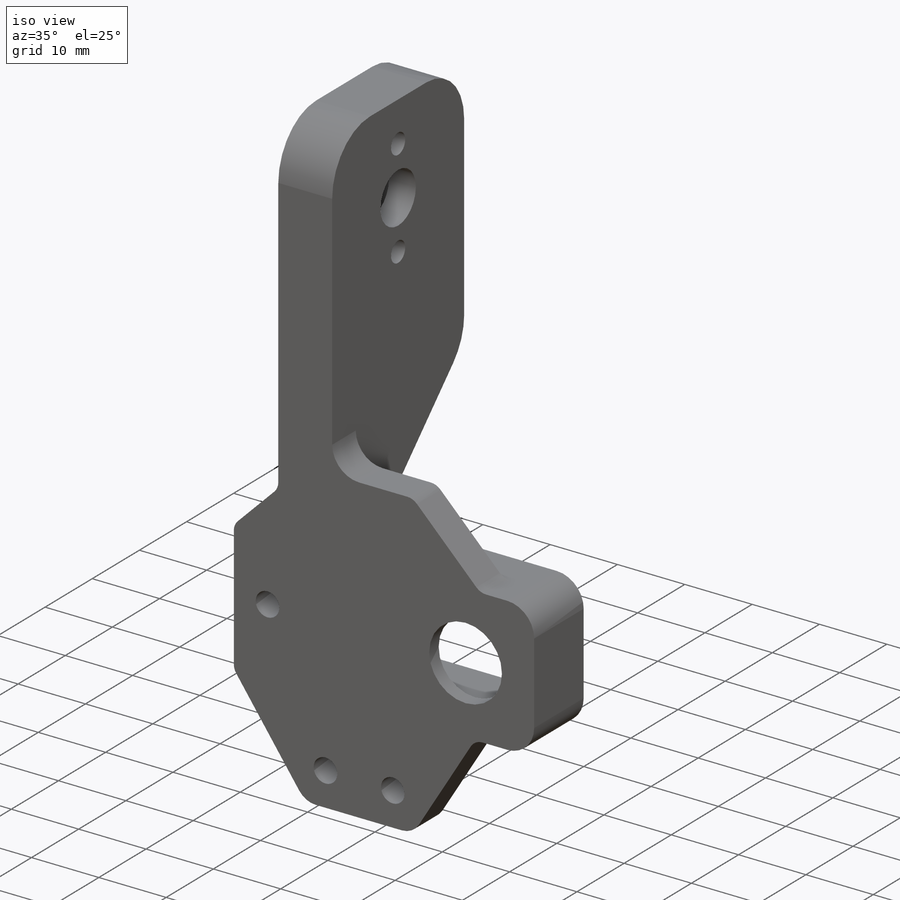
[diagram: iso view]
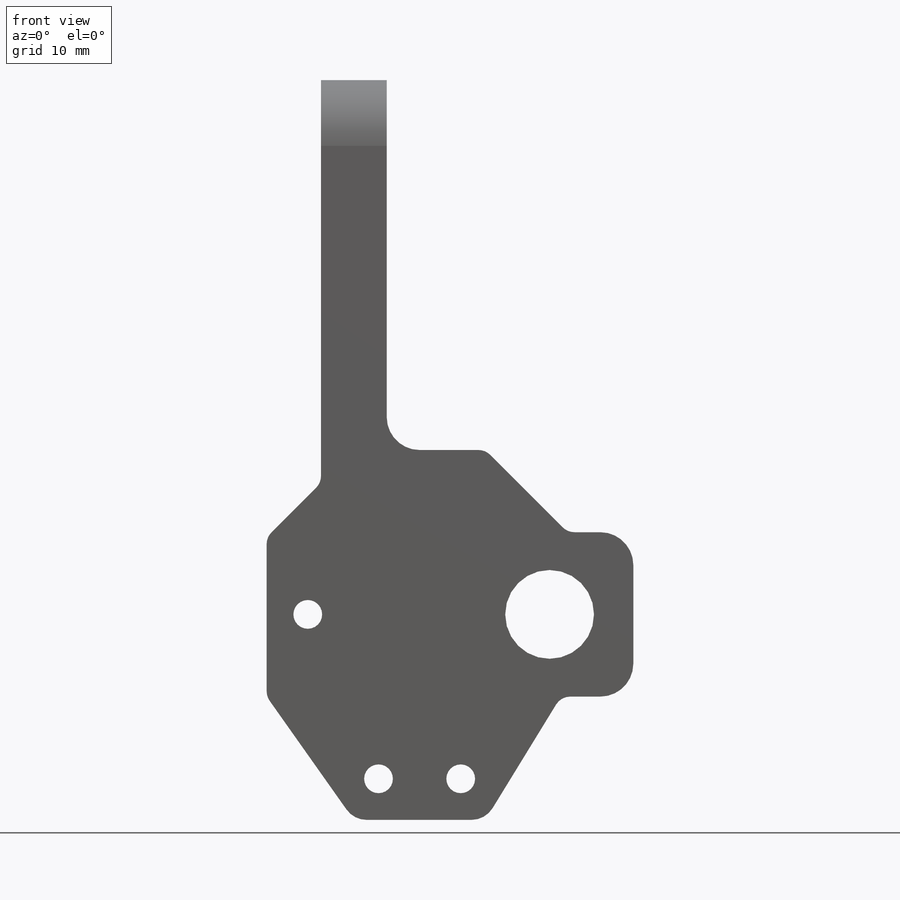
[diagram: front view]
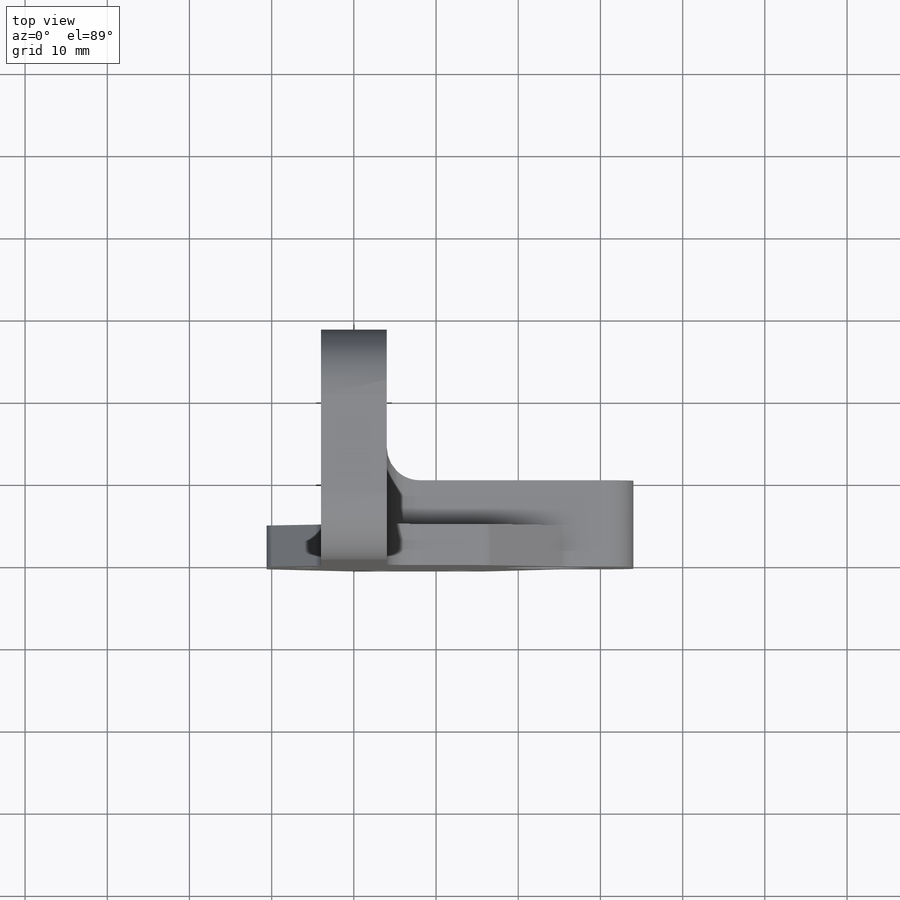
[diagram: top view]
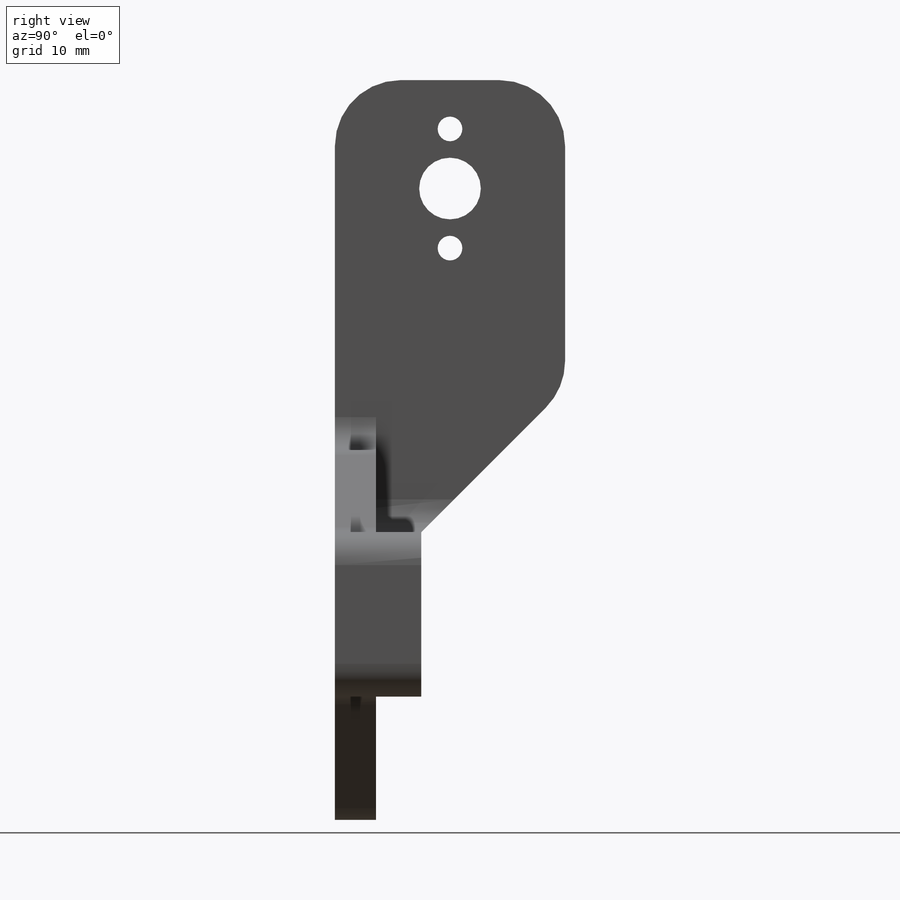
[diagram: right view]
SOLIDWORKS PART (.sldprt)
format: sldprt  version: not decoded by parser v0  size: 530,944 bytes
history: native  units: mm
features: sketch x13, cut_extrude x10, fillet x6, plane x5, extrude x3, material x1 (+10 scaffold rows collapsed)
feature tree (48):
  scaffold x10  (default folders/planes/origin — collapsed)
  material  "Malzeme <belirli değil>"
  plane  "Ön Düzlem"
  plane  "Üst Düzlem"
  plane  "Sağ Düzlem"
  sketch  "Çizim1"  dims[c1.D4=4.0mm c1.D6=4.0mm c1.D9=4.0mm c1.D14=2.0mm c1.D15=2.0mm c1.D16=2.0mm c1.D17=3.0mm c1.D18=2.0mm c1.D21=3.5mm c1.D22=3.5mm c1.D20=3.5mm c1.D1=8.0mm c1.D2=4.0mm c1.D3=45.0mm c2.D4=15.0mm c2.D5=15.0mm c2.D6=45.0mm c2.D7=16.0mm c2.D8=16.0mm c2.D9=10.0mm c2.D10=12.0mm c3.D10=~139.274096deg c4.D10=12.0mm c5.D10=~139.274096deg c5.D5=15.0mm c5.D6=45.0mm c5.D7=16.0mm c5.D8=15.0mm c5.D9=16.0mm c6.D10=10.0mm c6.D11=10.0mm c6.D12=18.0mm c6.D13=18.0mm c6.D14=20.0mm c6.D19=3.0mm c6.D20=5.0mm c6.D23=10.0mm c7.D19=5.0mm c7.D24=10.0mm c8.D19=8.4mm c8.D25=~8.606602mm c9.D19=13.0mm c9.D25=23.0mm c9.D26=13.0mm c9.D27=7.0mm c10.D26=6.5mm]
  extrude  "Yükseklik-Ekstrüzyon1"  Depth=10.5mm
  plane  "Düzlem1"
  sketch  "Çizim3"  dims[D1=5.5mm]
  cut_extrude  "Kes-Ekstrüzyon1"  Depth=34.5mm
  sketch  "Çizim4"  dims[D1=5.5mm D2=5.25mm]
  cut_extrude  "Kes-Ekstrüzyon2"  Depth=34.5mm
  sketch  "Çizim5"  dims[D1=5.5mm]
  cut_extrude  "Kes-Ekstrüzyon4"  Depth=50.5mm
  sketch  "Çizim7"  dims[D1=10.0mm D2=4.0mm D3=4.0mm D4=5.0mm D5=5.0mm]
  cut_extrude  "Kes-Ekstrüzyon5"  Depth=5.5mm
  sketch  "Çizim8"  dims[c1.D2=8.0mm c1.D3=8.0mm c2.D2=8.0mm c2.D1=28.0mm]
  extrude  "Yükseklik-Ekstrüzyon2"  Depth=8mm
  fillet  "Radyus2"  Radius=8mm
  fillet  "Radyus7"  Radius=4mm
  sketch  "Çizim9"
  cut_extrude  "Kes-Ekstrüzyon6"  Depth=8.5mm
  sketch  "Çizim10"  dims[D1=2.0mm D2=2.0mm D3=2.0mm D4=2.0mm D5=~38.083927mm]
  cut_extrude  "Kes-Ekstrüzyon7"  Depth=6mm
  plane  "Düzlem3"
  sketch  "Çizim11"  dims[c1.D3=5.0mm c1.D4=2.6mm c1.D5=2.6mm c1.D8=10.0mm c1.D9=10.0mm c2.D8=6.0mm c2.D9=6.0mm c2.D1=14.0mm c2.D2=14.0mm c2.D6=4.5mm c2.D7=9.0mm]
  cut_extrude  "Kes-Ekstrüzyon8"  Depth=4mm
  sketch  "Çizim12"  dims[D1=2.6mm D2=2.6mm D3=5.0mm]
  cut_extrude  "Kes-Ekstrüzyon9"  Depth=8mm
  sketch  "Çizim13"  dims[D1=7.5mm]
  extrude  "Yükseklik-Ekstrüzyon4"  Depth=8mm
  sketch  "Çizim14"  dims[c1.D1=7.5mm c1.D3=3.0mm c1.D4=3.0mm c1.D2=7.25mm c2.D4=3.0mm c2.D5=7.25mm]
  cut_extrude  "Kes-Ekstrüzyon10"  Depth=8mm
  sketch  "Çizim15"  dims[c1.D1=~4.660581mm c1.D2=~5.229747mm c1.D3=10.0mm c2.D1=5.0mm c2.D2=10.0mm]
  cut_extrude  "Kes-Ekstrüzyon11"  Depth=4mm
  fillet  "Radyus10"  Radius=3mm
  fillet  "Radyus11"  Radius=3mm
  fillet  "Radyus12"  Radius=3mm
  fillet  "Radyus13"  Radius=3mm
decode coverage: 31 of 32 modeling features carry decoded parameters
note: ~ marks probable driven/reference dimensions
note: suppression state not decoded; provenance and decode notes live in map.json
